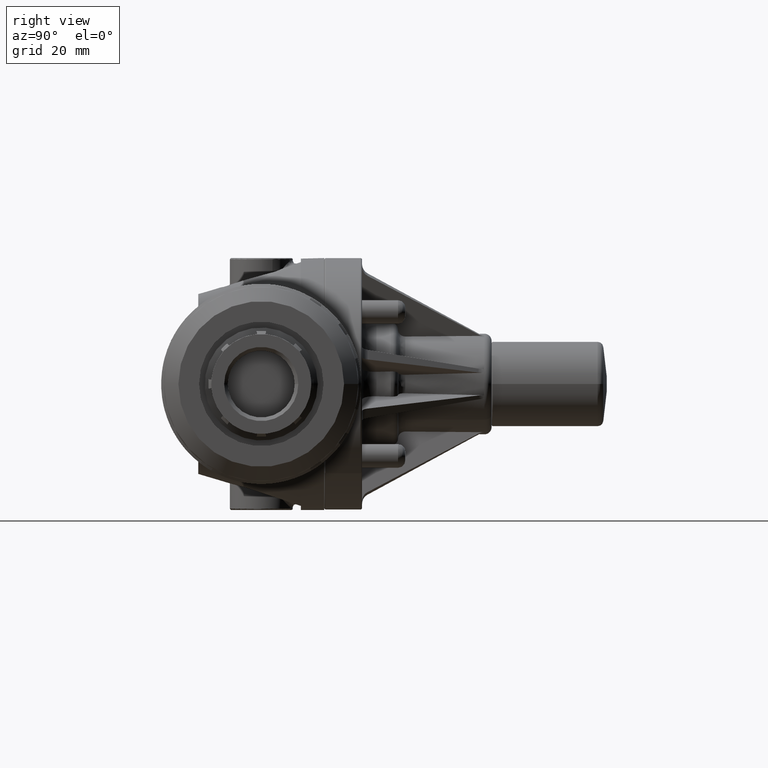
[diagram: clean part render]
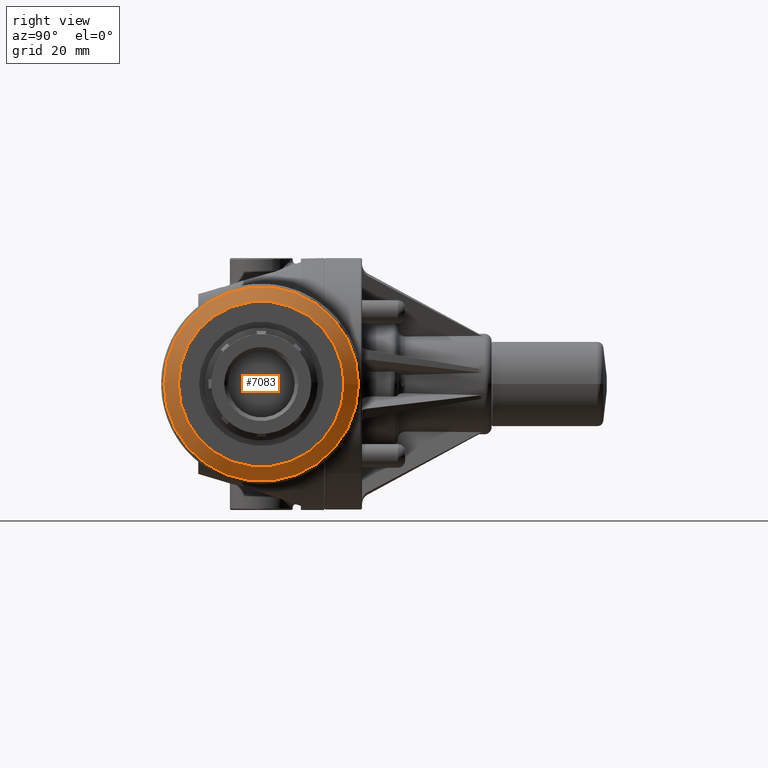
[diagram: same view with one face highlighted and labeled with its STEP entity id]
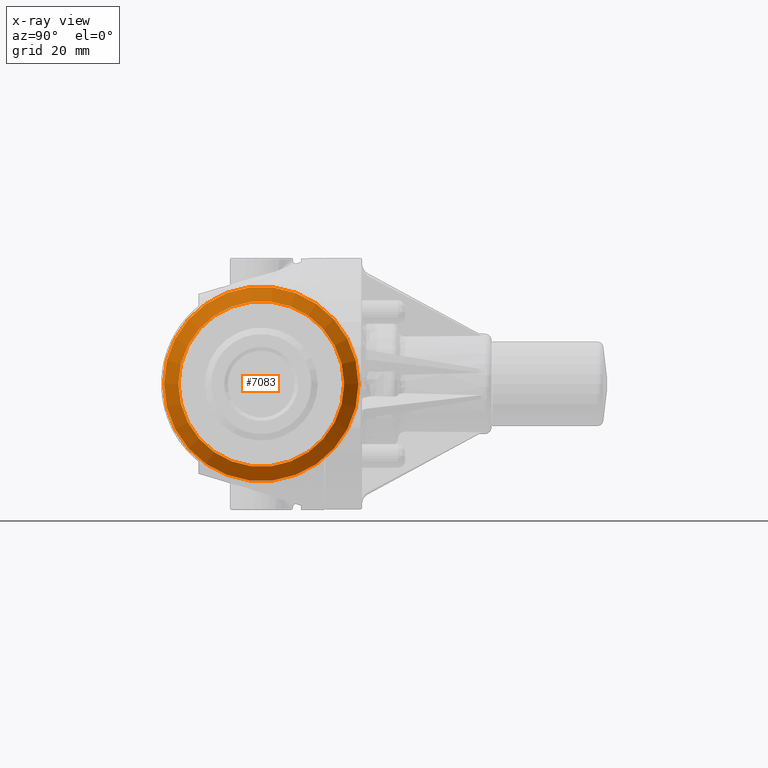
[diagram: x-ray of the same camera — body ghosted, the highlighted face saturated]
A machine part, right view. The second image highlights one B-rep face of the part: STEP entity #7083.
The next image is the same camera in x-ray: the body ghosted, the highlighted face saturated — about 0% of this face is hidden behind the body in this view.
In plain terms, the highlighted conical surface has half-angle 45 deg.
Its self-contained STEP definition (entity closure, byte-faithful):
#7052=CARTESIAN_POINT('',(2.925830213315428,2.225500000000000,-3.623564E-015));
#7053=VERTEX_POINT('',#7052);
#7054=CARTESIAN_POINT('',(2.925830213315428,0.874500000000000,-1.892269E-016));
#7055=DIRECTION('',(1.0,0.0,0.0));
#7056=DIRECTION('',(0.0,-1.0,0.0));
#7057=AXIS2_PLACEMENT_3D('',#7054,#7055,#7056);
#7058=CIRCLE('',#7057,1.351000000000000);
#7059=EDGE_CURVE('',#7053,#7053,#7058,.T.);
#7064=CARTESIAN_POINT('',(3.025830213315428,0.874500000000000,-4.089018E-016));
#7065=DIRECTION('',(-1.0,1.977858E-016,2.196749E-015));
#7066=DIRECTION('',(0.0,-1.0,0.0));
#7067=AXIS2_PLACEMENT_3D('',#7064,#7065,#7066);
#7068=CONICAL_SURFACE('',#7067,1.251000000000000,45.000000000000007);
#7069=ORIENTED_EDGE('',*,*,#7059,.T.);
#7070=EDGE_LOOP('',(#7069));
#7071=FACE_OUTER_BOUND('',#7070,.T.);
#7072=CARTESIAN_POINT('',(3.125830213315428,2.025500000000000,-3.836414E-015));
#7073=VERTEX_POINT('',#7072);
#7074=CARTESIAN_POINT('',(3.125830213315428,0.874500000000000,-6.285768E-016));
#7075=DIRECTION('',(-1.0,0.0,0.0));
#7076=DIRECTION('',(0.0,-1.0,0.0));
#7077=AXIS2_PLACEMENT_3D('',#7074,#7075,#7076);
#7078=CIRCLE('',#7077,1.151000000000000);
#7079=EDGE_CURVE('',#7073,#7073,#7078,.T.);
#7080=ORIENTED_EDGE('',*,*,#7079,.T.);
#7081=EDGE_LOOP('',(#7080));
#7082=FACE_BOUND('',#7081,.T.);
#7083=ADVANCED_FACE('',(#7071,#7082),#7068,.T.);